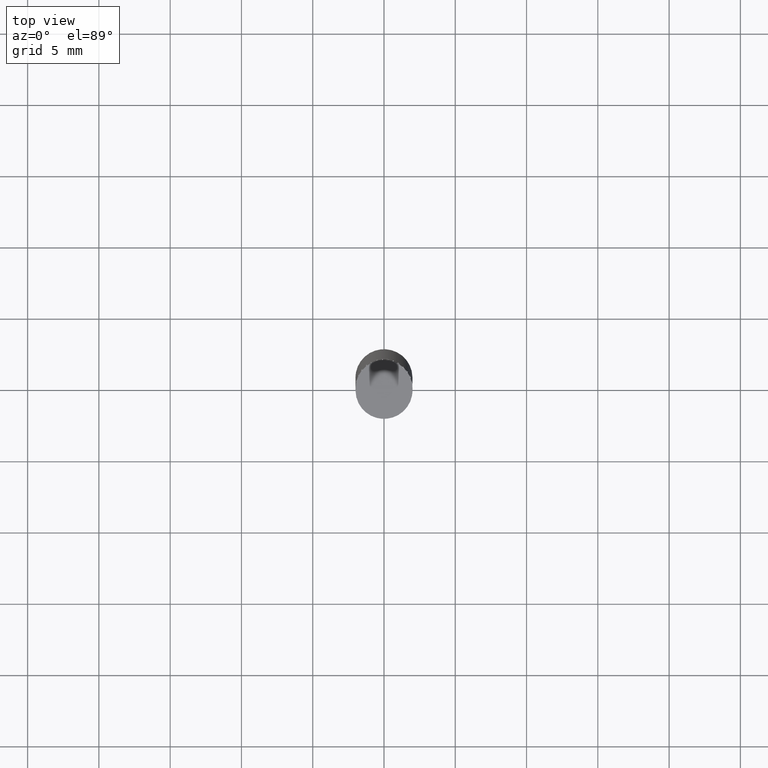
[diagram: clean part render]
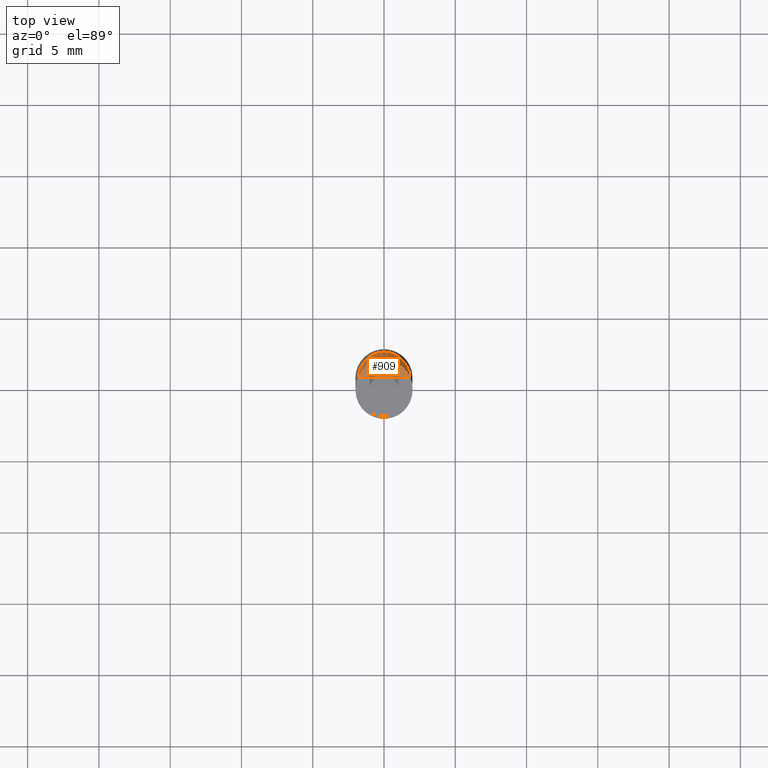
[diagram: same view with one face highlighted and labeled with its STEP entity id]
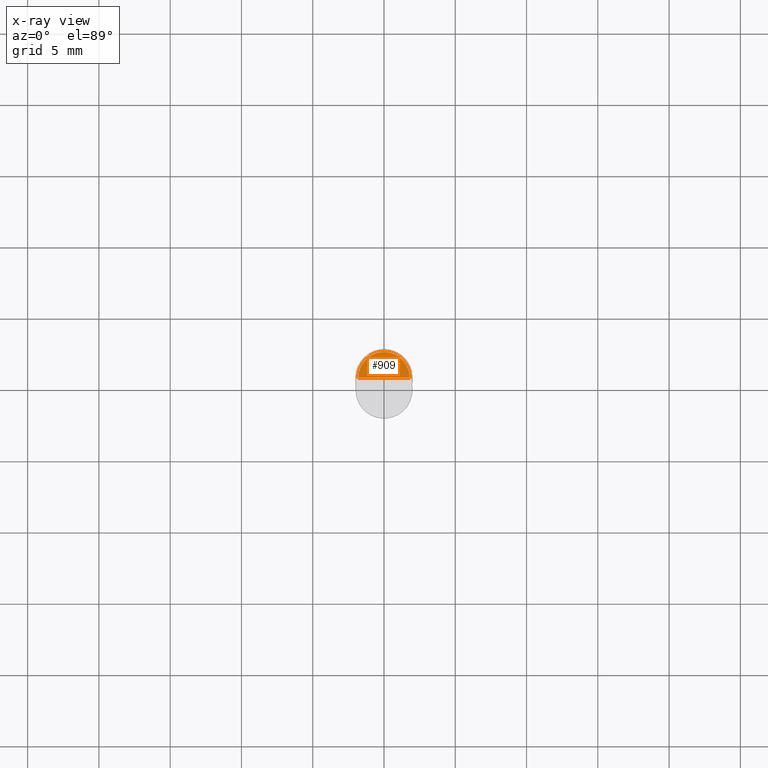
[diagram: x-ray of the same camera — body ghosted, the highlighted face saturated]
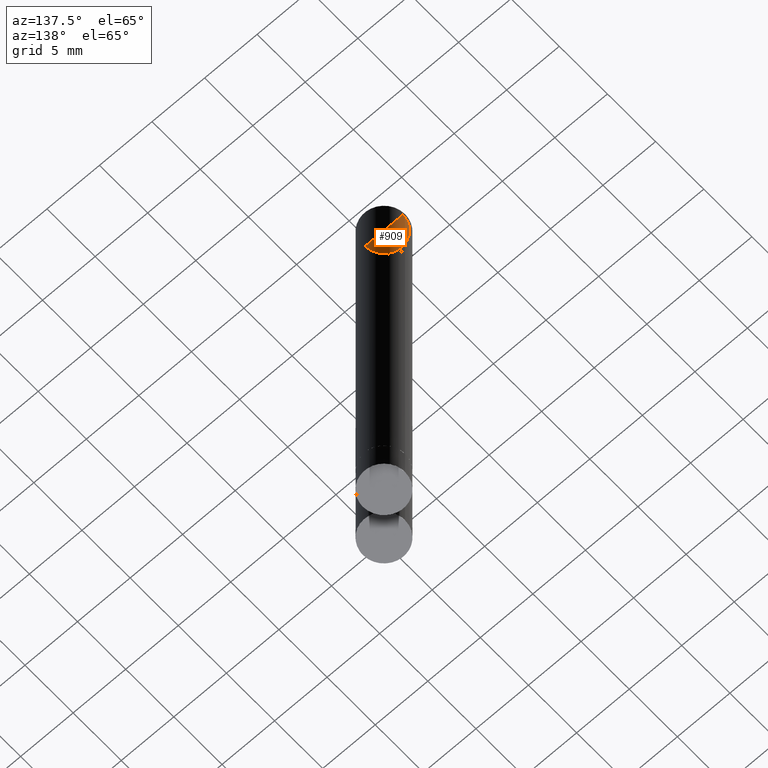
[diagram: same view with one face highlighted and labeled with its STEP entity id]
A machine part, top view. The second image highlights one B-rep face of the part: STEP entity #909.
The next image is the same camera in x-ray: the body ghosted, the highlighted face saturated — about 0% of this face is hidden behind the body in this view.
A second angle (auxiliary view) of the same face is appended — the face is thin or edge-on in the first view.
In plain terms, the highlighted face is a freeform B-spline surface patch.
Its self-contained STEP definition (entity closure, byte-faithful):
#688=CARTESIAN_POINT('',(1.8,0.0,40.0));
#689=CARTESIAN_POINT('',(1.8,1.8,40.0));
#690=CARTESIAN_POINT('',(0.0,1.8,40.0));
#691=CARTESIAN_POINT('',(-1.8,1.8,40.0));
#692=CARTESIAN_POINT('',(-1.8,0.0,40.0));
#693=CARTESIAN_POINT('',(0.0,0.0,40.0));
#894=(
BOUNDED_SURFACE()
B_SPLINE_SURFACE(1,2,(
(#688,#689,#690,#691,#692),
(#693,#693,#693,#693,#693)
), .UNSPECIFIED.,.F.,.F.,.F.)
B_SPLINE_SURFACE_WITH_KNOTS((2,2),(3,2,3),(
0.0,1.0),(
0.0,0.5,1.0), .UNSPECIFIED.)
GEOMETRIC_REPRESENTATION_ITEM()
RATIONAL_B_SPLINE_SURFACE(((1.0,0.707106781187,1.0,0.707106781187,1.0),
(1.0,0.707106781187,1.0,0.707106781187,1.0)
))
REPRESENTATION_ITEM('')
SURFACE()
);
#895=(
BOUNDED_CURVE()
B_SPLINE_CURVE(2,(#692,#691,#690,#689,#688),.UNSPECIFIED.,.F.,.F.)
B_SPLINE_CURVE_WITH_KNOTS((3,2,3),
(0.0,0.5,1.0),.UNSPECIFIED.)
CURVE()
GEOMETRIC_REPRESENTATION_ITEM()
RATIONAL_B_SPLINE_CURVE((1.0,0.707106781187,1.0,0.707106781187,1.0))
REPRESENTATION_ITEM('')
);
#896=(
BOUNDED_CURVE()
B_SPLINE_CURVE(1,(#688,#693),.UNSPECIFIED.,.F.,.F.)
B_SPLINE_CURVE_WITH_KNOTS((2,2),
(0.0,1.0),.UNSPECIFIED.)
CURVE()
GEOMETRIC_REPRESENTATION_ITEM()
RATIONAL_B_SPLINE_CURVE((1.0,1.0))
REPRESENTATION_ITEM('')
);
#897=(
BOUNDED_CURVE()
B_SPLINE_CURVE(1,(#693,#692),.UNSPECIFIED.,.F.,.F.)
B_SPLINE_CURVE_WITH_KNOTS((2,2),
(0.0,1.0),.UNSPECIFIED.)
CURVE()
GEOMETRIC_REPRESENTATION_ITEM()
RATIONAL_B_SPLINE_CURVE((1.0,1.0))
REPRESENTATION_ITEM('')
);
#898=VERTEX_POINT('',#688);
#899=VERTEX_POINT('',#692);
#900=VERTEX_POINT('',#693);
#901=EDGE_CURVE('',#899,#898,#895,.T.);
#902=EDGE_CURVE('',#898,#900,#896,.T.);
#903=EDGE_CURVE('',#900,#899,#897,.T.);
#904=ORIENTED_EDGE('',*,*,#901,.T.);
#905=ORIENTED_EDGE('',*,*,#902,.T.);
#906=ORIENTED_EDGE('',*,*,#903,.T.);
#907=EDGE_LOOP('',(#904,#905,#906));
#908=FACE_OUTER_BOUND('',#907,.T.);
#909=ADVANCED_FACE('',(#908),#894,.T.);